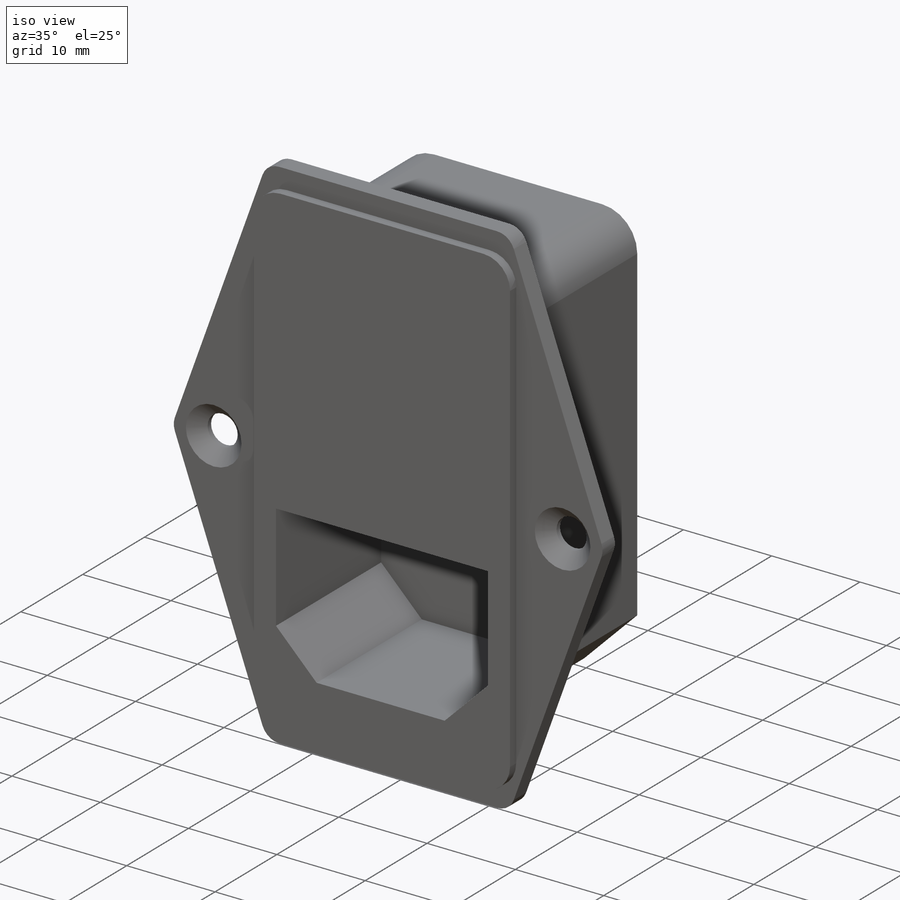
[diagram: iso view]
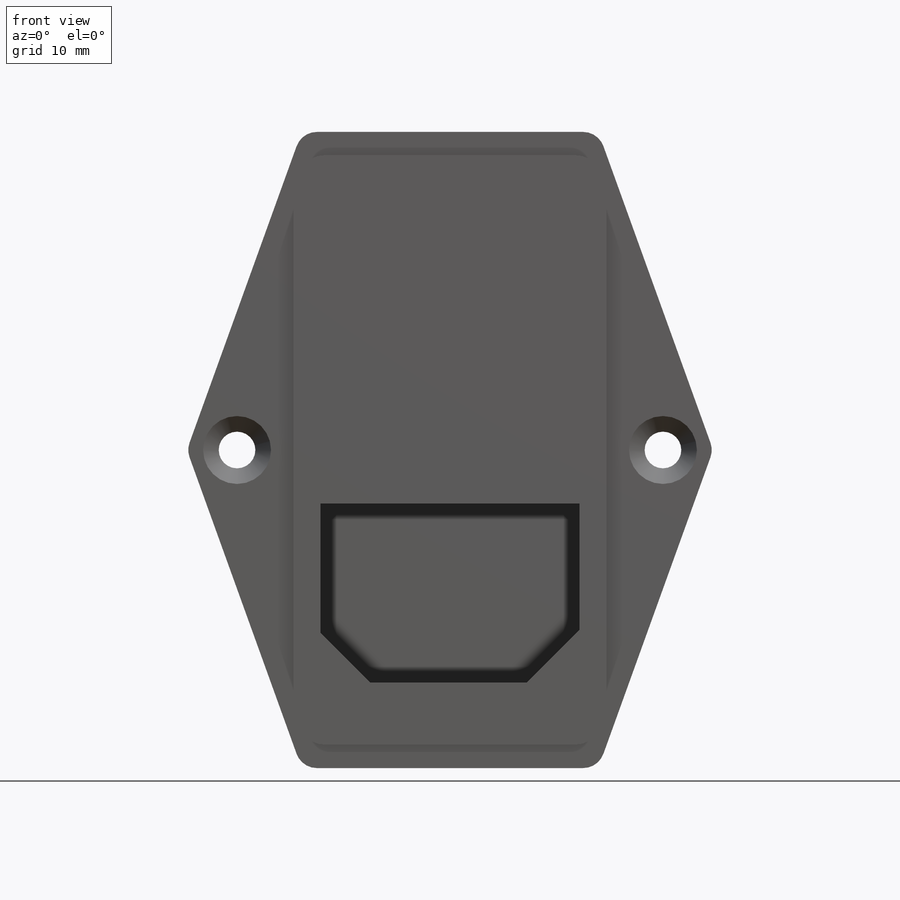
[diagram: front view]
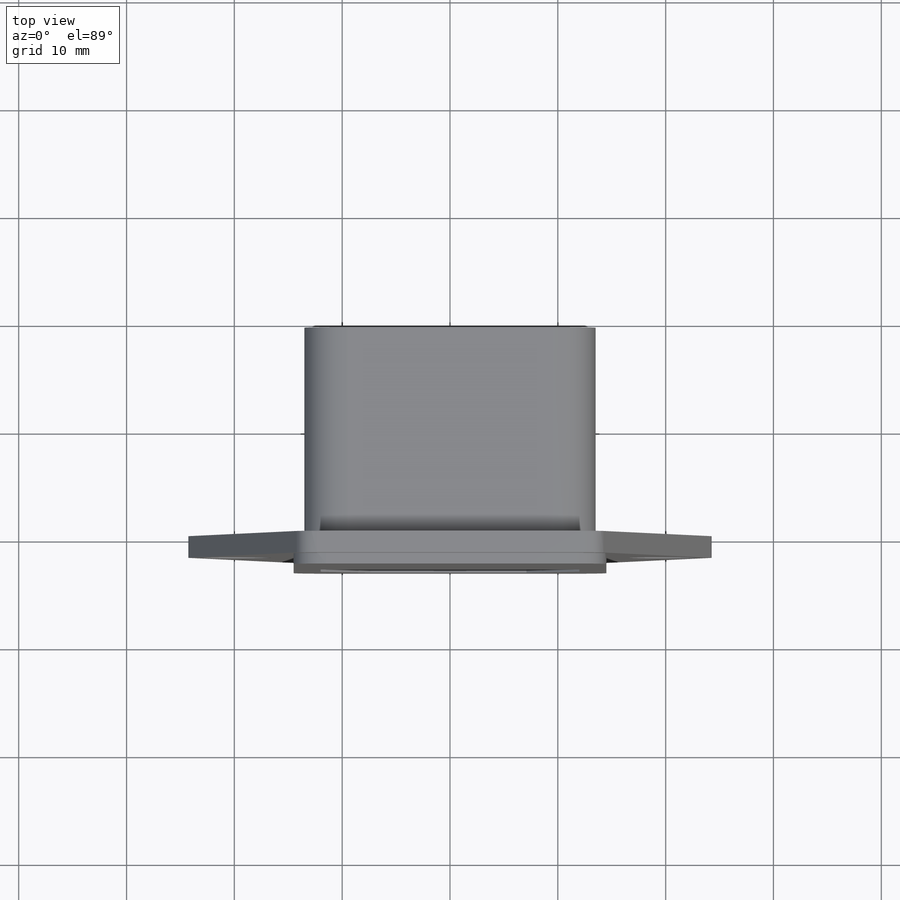
[diagram: top view]
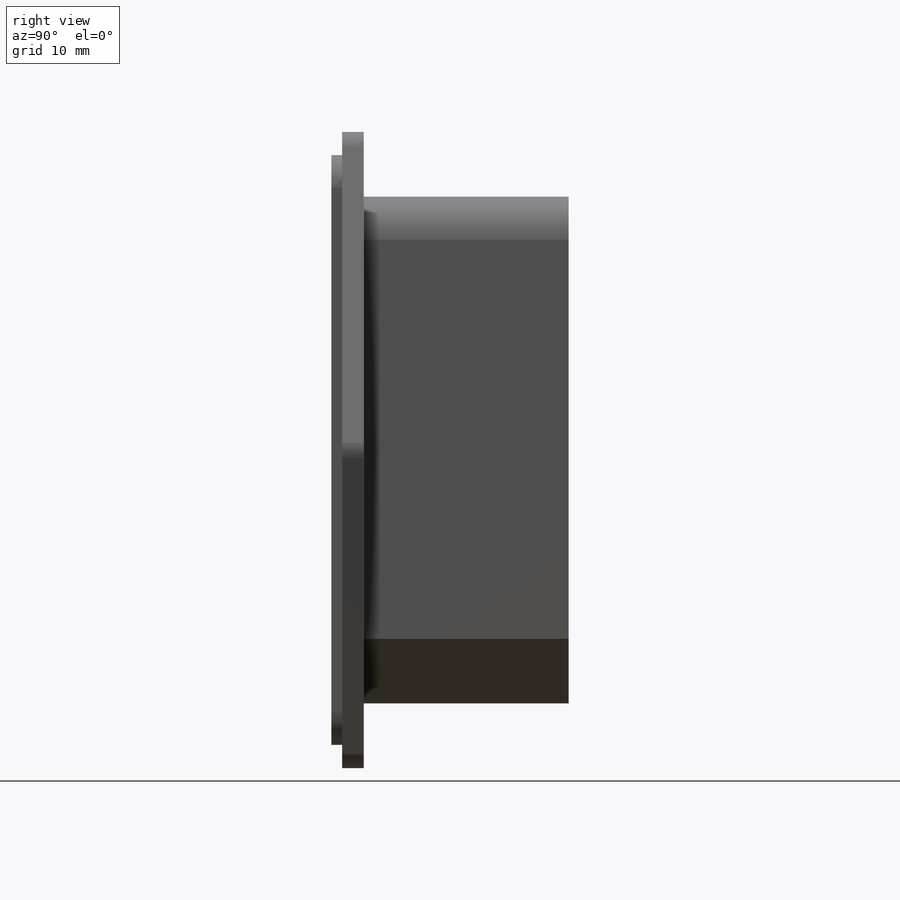
[diagram: right view]
SOLIDWORKS PART (.sldprt)
format: sldprt  version: not decoded by parser v0  size: 268,800 bytes
history: native  units: mm
features: sketch x6, extrude x3, fillet x3, material x1, hole x1, chamfer x1, cut_extrude x1 (+12 scaffold rows collapsed)
feature tree (28):
  scaffold x12  (default folders/planes/origin — collapsed)
  material  "Material <not specified>"
  sketch  "Sketch1"  dims[c1.D1=27.5mm c1.D2=59.0mm c1.D3=24.4mm c1.D4=10.65mm c2.D4=~219.700883deg c3.D4=24.4mm]
  extrude  "Boss-Extrude1"  Depth=2mm
  sketch  "Sketch2"  dims[D1=29.0mm D2=54.7mm]
  extrude  "Boss-Extrude2"  Depth=1mm
  fillet  "Fillet1"  Radius=3mm
  fillet  "Fillet2"  Radius=2mm
  hole  "CSK for M3 Flat Head Machine Screw1"  Diameter=3.4mm Depth=2mm
  sketch  "Sketch4"  dims[D1=19.75mm D2=19.75mm]
  sketch  "Sketch3"  dims[hole-wizard template sketch: 59 standard entries collapsed; hole parameters above]
  sketch  "Sketch5"  dims[D1=27.0mm D2=47.0mm]
  extrude  "Boss-Extrude3"  Depth=19mm
  chamfer  "Chamfer1"  Distance=6mm Angle=45deg
  fillet  "Fillet3"  Radius=4mm
  sketch  "Sketch6"  dims[c1.D1=5.0mm c1.D2=12.0mm c1.D3=12.0mm c1.D4=16.6mm c1.D5=~12.332292mm c2.D5=135.0deg c2.D6=~10.391374mm c3.D6=135.0deg c3.D7=14.5mm c3.D8=12.0mm]
  cut_extrude  "Cut-Extrude1"  Depth=17mm
decode coverage: 15 of 15 modeling features carry decoded parameters
note: ~ marks probable driven/reference dimensions
note: suppression state not decoded; provenance and decode notes live in map.json
